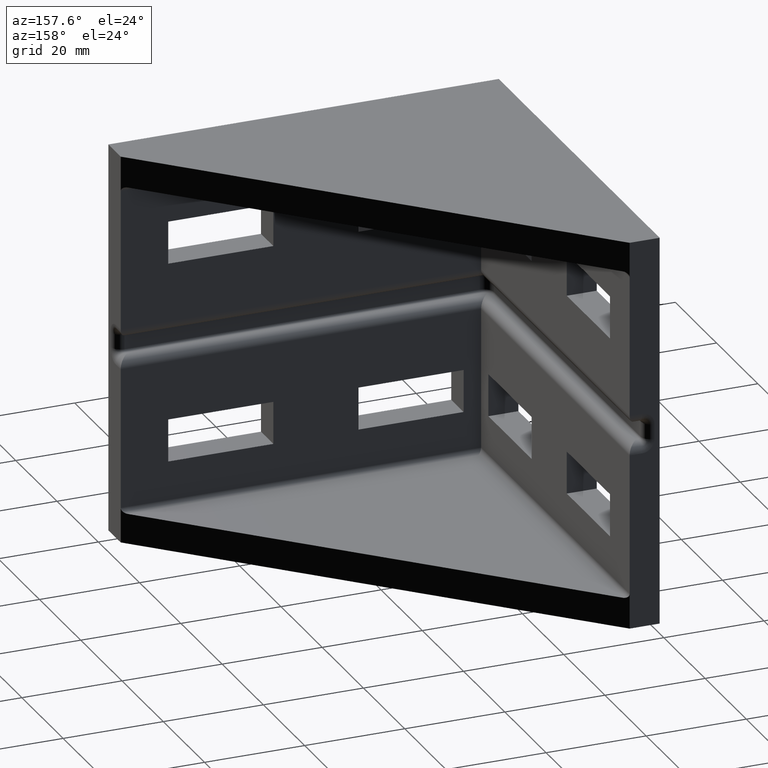
[diagram: clean part render]
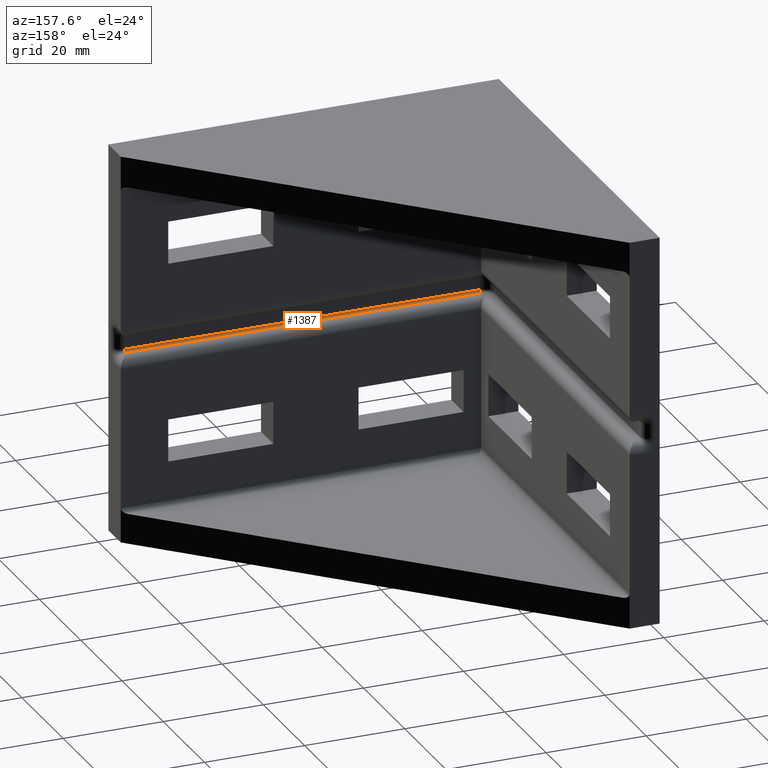
[diagram: same view with one face highlighted and labeled with its STEP entity id]
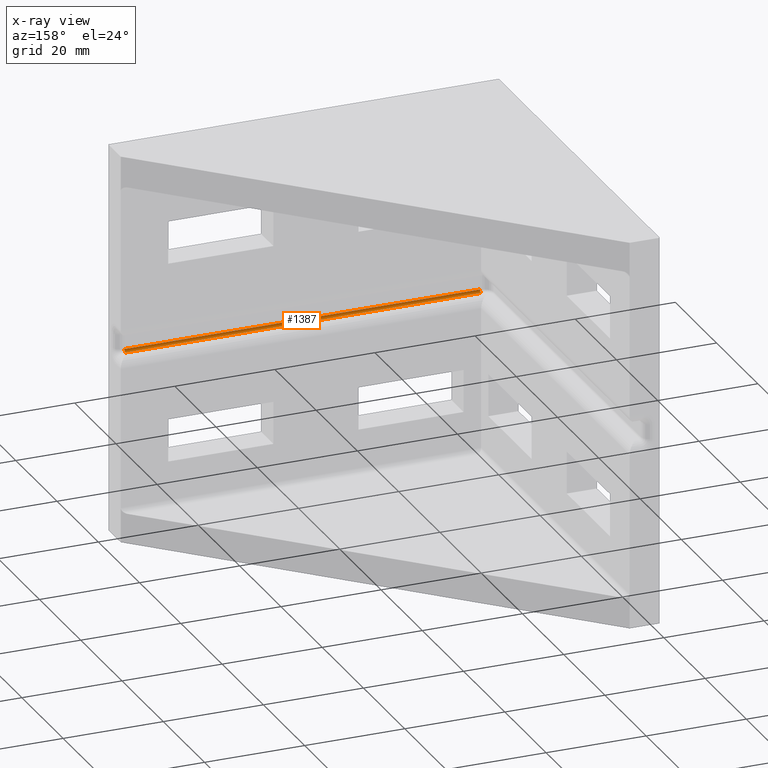
[diagram: x-ray of the same camera — body ghosted, the highlighted face saturated]
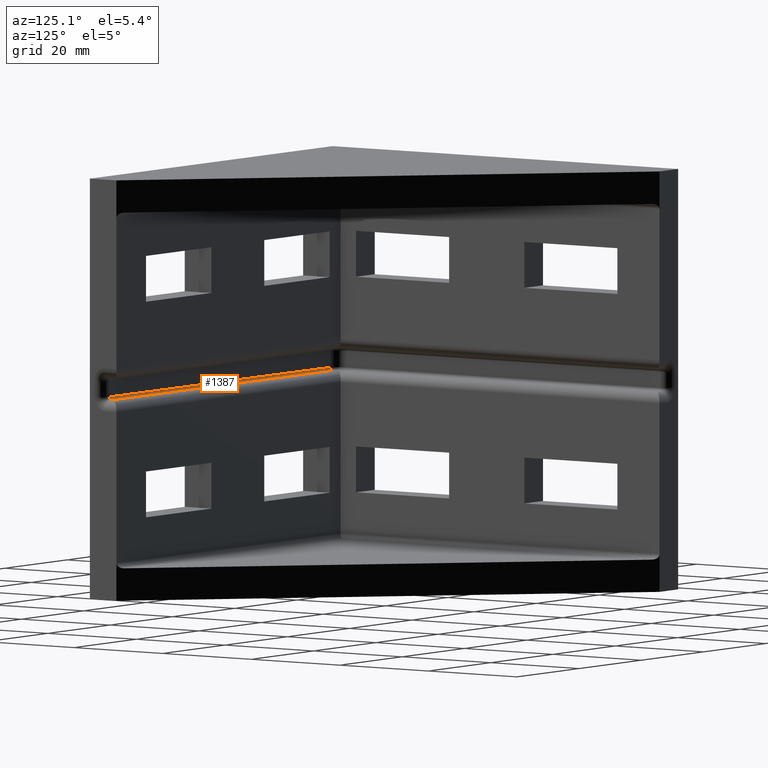
[diagram: same view with one face highlighted and labeled with its STEP entity id]
A machine part, auxiliary view. The second image highlights one B-rep face of the part: STEP entity #1387.
The next image is the same camera in x-ray: the body ghosted, the highlighted face saturated — about 0% of this face is hidden behind the body in this view.
A second angle (auxiliary view) of the same face is appended — the face is thin or edge-on in the first view.
In plain terms, the highlighted cylindrical surface (edge-blend (fillet) strip) has radius 0.5 mm, axis along (-1, 0, 0).
Its self-contained STEP definition (entity closure, byte-faithful):
#25=CYLINDRICAL_SURFACE('',#1476,0.5);
#122=FACE_OUTER_BOUND('',#213,.T.);
#213=EDGE_LOOP('',(#1190,#1191,#1192,#1193));
#243=LINE('',#1928,#402);
#392=LINE('',#2243,#551);
#402=VECTOR('',#1540,71.);
#551=VECTOR('',#1801,71.);
#563=CIRCLE('',#1477,0.5);
#564=CIRCLE('',#1478,0.5);
#586=VERTEX_POINT('',#1924);
#588=VERTEX_POINT('',#1927);
#697=VERTEX_POINT('',#2241);
#698=VERTEX_POINT('',#2242);
#709=EDGE_CURVE('',#586,#588,#243,.T.);
#866=EDGE_CURVE('',#697,#698,#392,.T.);
#872=EDGE_CURVE('',#586,#698,#563,.T.);
#873=EDGE_CURVE('',#697,#588,#564,.T.);
#1190=ORIENTED_EDGE('',*,*,#709,.F.);
#1191=ORIENTED_EDGE('',*,*,#872,.T.);
#1192=ORIENTED_EDGE('',*,*,#866,.F.);
#1193=ORIENTED_EDGE('',*,*,#873,.T.);
#1387=ADVANCED_FACE('',(#122),#25,.F.);
#1476=AXIS2_PLACEMENT_3D('',#2252,#1811,#1812);
#1477=AXIS2_PLACEMENT_3D('',#2253,#1813,#1814);
#1478=AXIS2_PLACEMENT_3D('',#2254,#1815,#1816);
#1540=DIRECTION('',(1.,0.,0.));
#1801=DIRECTION('',(-1.,0.,0.));
#1811=DIRECTION('center_axis',(-1.,0.,0.));
#1812=DIRECTION('ref_axis',(0.,0.,1.));
#1813=DIRECTION('center_axis',(-1.,0.,0.));
#1814=DIRECTION('ref_axis',(0.,0.,1.));
#1815=DIRECTION('center_axis',(1.,0.,0.));
#1816=DIRECTION('ref_axis',(0.,0.,1.));
#1924=CARTESIAN_POINT('',(5.,3.5,37.));
#1927=CARTESIAN_POINT('',(76.,3.5,37.));
#1928=CARTESIAN_POINT('',(78.,3.5,37.));
#2241=CARTESIAN_POINT('',(76.,3.,37.5));
#2242=CARTESIAN_POINT('',(5.00000000000001,3.,37.5));
#2243=CARTESIAN_POINT('',(3.00000000000001,3.,37.5));
#2252=CARTESIAN_POINT('Origin',(-0.5,3.5,37.5));
#2253=CARTESIAN_POINT('Origin',(5.00000000000001,3.5,37.5));
#2254=CARTESIAN_POINT('Origin',(76.,3.5,37.5));